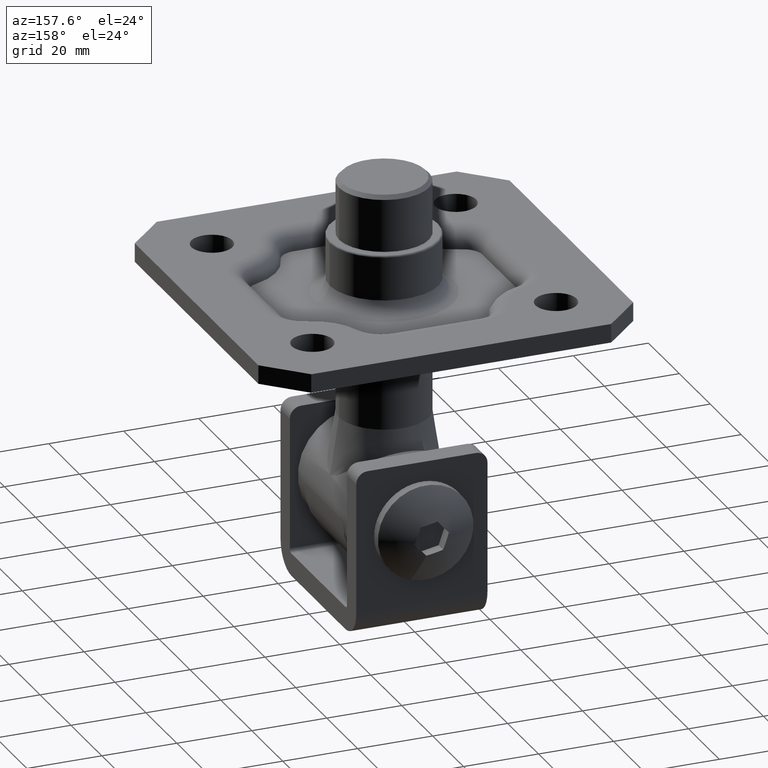
[diagram: clean part render]
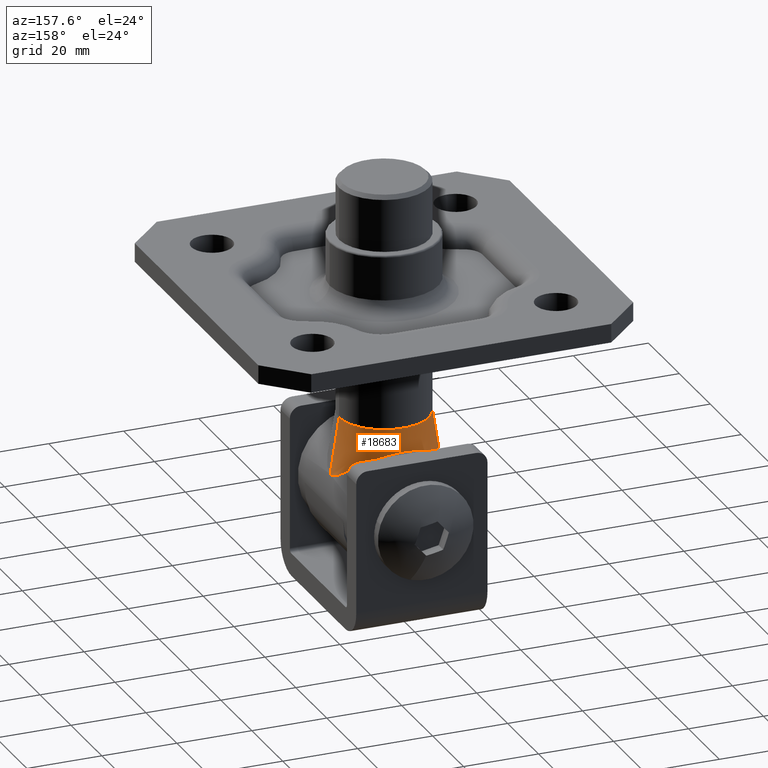
[diagram: same view with one face highlighted and labeled with its STEP entity id]
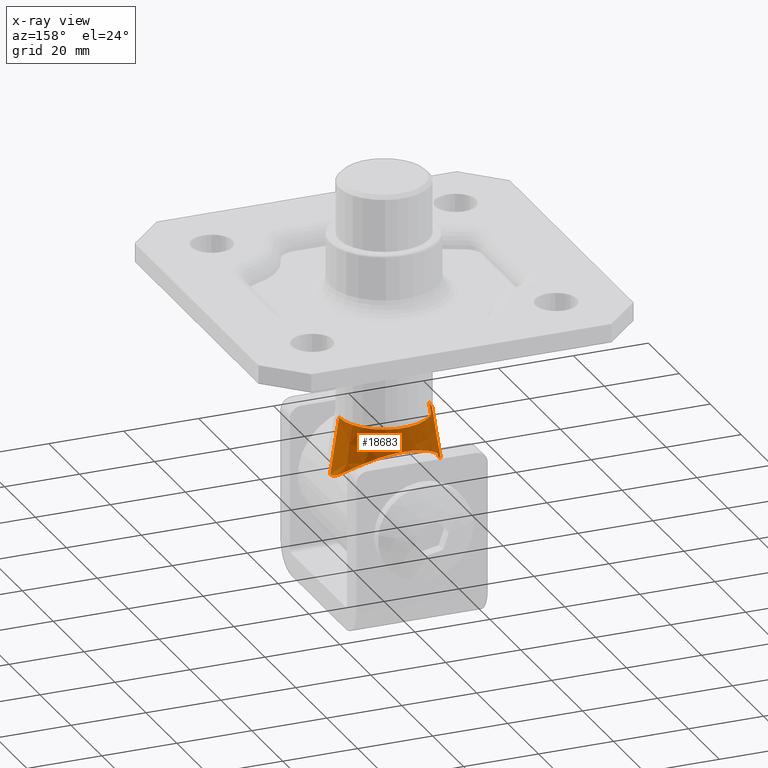
[diagram: x-ray of the same camera — body ghosted, the highlighted face saturated]
A machine part, auxiliary view. The second image highlights one B-rep face of the part: STEP entity #18683.
The next image is the same camera in x-ray: the body ghosted, the highlighted face saturated — about 0% of this face is hidden behind the body in this view.
In plain terms, the highlighted conical surface has half-angle 9 deg.
Its self-contained STEP definition (entity closure, byte-faithful):
#107 = CARTESIAN_POINT ( 'NONE',  ( 13.39713544956636900, -4.410161254349027600, 8.752310522460673400 ) ) ;
#133 = DIRECTION ( 'NONE',  ( -1.000000000000000000, 0.0000000000000000000, 0.0000000000000000000 ) ) ;
#181 = CARTESIAN_POINT ( 'NONE',  ( 14.29570863239523800, -1.226807393093556100, 7.186002517344746800 ) ) ;
#389 = CARTESIAN_POINT ( 'NONE',  ( -13.21602289178644600, -4.801149830408786700, 9.024675190932733000 ) ) ;
#421 = VERTEX_POINT ( 'NONE', #9619 ) ;
#479 = CARTESIAN_POINT ( 'NONE',  ( -14.36059214336729400, -0.4952040091087420200, 7.055150786336528600 ) ) ;
#535 = B_SPLINE_CURVE_WITH_KNOTS ( 'NONE', 3,
 ( #13796, #1922, #22241, #17406, #10326, #19103, #18828, #8644, #3470, #8504, #11998, #20663, #3392, #13967, #1697, #15434, #15512, #6734, #7037, #12160, #107, #6808, #1846, #17321, #6959, #19042, #20728, #181, #3602, #8793, #20816, #19398 ),
 .UNSPECIFIED., .F., .F.,
 ( 4, 2, 2, 2, 2, 2, 2, 2, 2, 2, 2, 2, 2, 2, 2, 4 ),
 ( 0.01277028724076360000, 0.01422243370768486300, 0.01567458017460612900, 0.01712672664152739200, 0.01857887310844865600, 0.02148316604229118900, 0.02438745897613371600, 0.02729175190997624700, 0.02874389837689751000, 0.03019604484381877700, 0.03164819131074004400, 0.03310033777766131100, 0.03382641101112194400, 0.03455248424458257800, 0.03527855747804321100, 0.03600463071150384500 ),
 .UNSPECIFIED. ) ;
#558 = CARTESIAN_POINT ( 'NONE',  ( -12.64338464806407300, -5.899818394293129500, 9.827355603280977900 ) ) ;
#629 = CARTESIAN_POINT ( 'NONE',  ( -10.61966705674688400, -8.486980950936315400, 11.97379655446275000 ) ) ;
#1469 = DIRECTION ( 'NONE',  ( 0.0000000000000000000, 0.0000000000000000000, 1.000000000000000000 ) ) ;
#1697 = CARTESIAN_POINT ( 'NONE',  ( 11.22387501882448300, -7.854222077706151800, 11.42651744918916600 ) ) ;
#1846 = CARTESIAN_POINT ( 'NONE',  ( 13.84910258656552500, -3.233812484852027300, 8.016455906739253100 ) ) ;
#1922 = CARTESIAN_POINT ( 'NONE',  ( 0.4868429948291325100, -12.95030664194722200, 16.00000000000000000 ) ) ;
#2419 = VERTEX_POINT ( 'NONE', #9061 ) ;
#2453 = CARTESIAN_POINT ( 'NONE',  ( -13.85008887611803600, -3.230640819407841800, 8.014728776402066000 ) ) ;
#2469 = VECTOR ( 'NONE', #6805, 1000.000000000000100 ) ;
#3392 = CARTESIAN_POINT ( 'NONE',  ( 9.441061330662234900, -9.594207743351765000, 12.94178290125595200 ) ) ;
#3470 = CARTESIAN_POINT ( 'NONE',  ( 5.192674089972531900, -12.02094834097389300, 15.14086051521905000 ) ) ;
#3510 = CARTESIAN_POINT ( 'NONE',  ( 14.37013227026879000, 1.764413466471998600E-015, 7.035573788610242300 ) ) ;
#3602 = CARTESIAN_POINT ( 'NONE',  ( 14.32312746724469000, -0.9877285487362730300, 7.130904558068571900 ) ) ;
#3987 = CARTESIAN_POINT ( 'NONE',  ( -14.29607687870768700, -1.224008810852781600, 7.185271387234304400 ) ) ;
#4214 = CARTESIAN_POINT ( 'NONE',  ( -6.022565946272988100, -11.68264532709573800, 14.83026596138718200 ) ) ;
#5607 = CARTESIAN_POINT ( 'NONE',  ( -14.22619847073909900, -1.693352005733906000, 7.322650893035185700 ) ) ;
#5754 = CARTESIAN_POINT ( 'NONE',  ( -8.727182448398648900, -10.14789768064235500, 13.43706696347478400 ) ) ;
#6734 = CARTESIAN_POINT ( 'NONE',  ( 12.64662427956729800, -5.856851855028117400, 9.807314779337019700 ) ) ;
#6805 = DIRECTION ( 'NONE',  ( 0.1564344650402308700, 1.915769668878472600E-017, -0.9876883405951376600 ) ) ;
#6808 = CARTESIAN_POINT ( 'NONE',  ( 13.70917712616147100, -3.635720133676526400, 8.254976696462247100 ) ) ;
#6902 = AXIS2_PLACEMENT_3D ( 'NONE', #13910, #15682, #133 ) ;
#6959 = CARTESIAN_POINT ( 'NONE',  ( 14.08573022560408500, -2.372981774495954700, 7.589671369872980300 ) ) ;
#7037 = CARTESIAN_POINT ( 'NONE',  ( 12.84964431291610500, -5.505768052566947900, 9.538940569928696400 ) ) ;
#7335 = FACE_OUTER_BOUND ( 'NONE', #11184, .T. ) ;
#7491 = CARTESIAN_POINT ( 'NONE',  ( -7.625748743198554000, -10.85119660894329700, 14.07222713797434100 ) ) ;
#7749 = EDGE_CURVE ( 'NONE', #19343, #17485, #535, .T. ) ;
#8504 = CARTESIAN_POINT ( 'NONE',  ( 6.478341259610828300, -11.49543335737147300, 14.65841669171637200 ) ) ;
#8644 = CARTESIAN_POINT ( 'NONE',  ( 4.746274500754809700, -12.17969392199039000, 15.28707898029497900 ) ) ;
#8793 = CARTESIAN_POINT ( 'NONE',  ( 14.36053738444275800, -0.4966424977800340500, 7.055263729248144600 ) ) ;
#9061 = CARTESIAN_POINT ( 'NONE',  ( -12.00000000000000200, 0.0000000000000000000, 22.00000000000000700 ) ) ;
#9113 = EDGE_CURVE ( 'NONE', #2419, #14969, #19098, .T. ) ;
#9168 = CARTESIAN_POINT ( 'NONE',  ( -11.45100730578209400, -7.556691287489495100, 11.18076508501116400 ) ) ;
#9332 = CARTESIAN_POINT ( 'NONE',  ( 1.959434424252865500E-015, -12.95030664194722200, 16.00000000000000000 ) ) ;
#9399 = VECTOR ( 'NONE', #21487, 1000.000000000000100 ) ;
#9405 = CARTESIAN_POINT ( 'NONE',  ( -6.441204340439239400, -11.48895017750733900, 14.65289951957588400 ) ) ;
#9619 = CARTESIAN_POINT ( 'NONE',  ( -14.37013227026879000, 2.180969929334028300E-018, 7.035573788610246700 ) ) ;
#9965 = DIRECTION ( 'NONE',  ( 1.000000000000000000, 0.0000000000000000000, 0.0000000000000000000 ) ) ;
#10326 = CARTESIAN_POINT ( 'NONE',  ( 2.435003990984006900, -12.75723712328657900, 15.82087071638434100 ) ) ;
#10595 = ORIENTED_EDGE ( 'NONE', *, *, #9113, .F. ) ;
#10707 = ORIENTED_EDGE ( 'NONE', *, *, #13213, .T. ) ;
#10869 = CARTESIAN_POINT ( 'NONE',  ( -14.03044140594113300, -2.592336830077414800, 7.691678865070144000 ) ) ;
#11173 = CARTESIAN_POINT ( 'NONE',  ( -2.415156128726731600, -12.76067267719356700, 15.82405441227312600 ) ) ;
#11184 = EDGE_LOOP ( 'NONE', ( #21411, #10595, #20767, #10707, #13307 ) ) ;
#11865 = LINE ( 'NONE', #13792, #2469 ) ;
#11998 = CARTESIAN_POINT ( 'NONE',  ( 7.275329803473940900, -11.07725360994827200, 14.27626569478717600 ) ) ;
#12160 = CARTESIAN_POINT ( 'NONE',  ( 13.22487948625288800, -4.782364329755414400, 9.011509792436353200 ) ) ;
#12462 = CARTESIAN_POINT ( 'NONE',  ( -11.18496473187583400, -7.872414951113645600, 11.44751921904971500 ) ) ;
#12617 = CARTESIAN_POINT ( 'NONE',  ( -13.39264271806654300, -4.420788288017975600, 8.759328699364830900 ) ) ;
#12891 = CARTESIAN_POINT ( 'NONE',  ( -4.740467467289788000, -12.20387242224812000, 15.30883158318468200 ) ) ;
#13213 = EDGE_CURVE ( 'NONE', #421, #19343, #19526, .T. ) ;
#13307 = ORIENTED_EDGE ( 'NONE', *, *, #7749, .T. ) ;
#13792 = CARTESIAN_POINT ( 'NONE',  ( 12.00000000000000200, 1.469576158976824100E-015, 22.00000000000000700 ) ) ;
#13796 = CARTESIAN_POINT ( 'NONE',  ( 1.959434424252865500E-015, -12.95030664194722200, 16.00000000000000000 ) ) ;
#13910 = CARTESIAN_POINT ( 'NONE',  ( 0.0000000000000000000, 0.0000000000000000000, 22.00000000000000700 ) ) ;
#13967 = CARTESIAN_POINT ( 'NONE',  ( 10.66935805866507000, -8.461396669915684400, 11.94940091923295200 ) ) ;
#14258 = CARTESIAN_POINT ( 'NONE',  ( -14.37013227026879000, -0.2461521886286288100, 7.035573788610253000 ) ) ;
#14392 = CARTESIAN_POINT ( 'NONE',  ( -10.32457508511419600, -8.781316349645907200, 12.22946493516243800 ) ) ;
#14758 = CARTESIAN_POINT ( 'NONE',  ( -0.9701484662845657500, -12.92649654103047800, 15.97788732500519300 ) ) ;
#14969 = VERTEX_POINT ( 'NONE', #20606 ) ;
#15434 = CARTESIAN_POINT ( 'NONE',  ( 11.97441642346419500, -6.877081842867846200, 10.61831056153364000 ) ) ;
#15512 = CARTESIAN_POINT ( 'NONE',  ( 12.20931777507580300, -6.542142880047163300, 10.34664623521851800 ) ) ;
#15682 = DIRECTION ( 'NONE',  ( 0.0000000000000000000, 0.0000000000000000000, -1.000000000000000000 ) ) ;
#15968 = CARTESIAN_POINT ( 'NONE',  ( -14.32340457749537100, -0.9848041524298384300, 7.130346459708116300 ) ) ;
#16136 = CARTESIAN_POINT ( 'NONE',  ( -9.398591361373505000, -9.629100803747128600, 12.97278434169120900 ) ) ;
#16202 = CARTESIAN_POINT ( 'NONE',  ( -13.70937776139252900, -3.635738398424943600, 8.254797370785858800 ) ) ;
#16270 = CARTESIAN_POINT ( 'NONE',  ( -3.841498156431065500, -12.47772885909057900, 15.56205643830414200 ) ) ;
#16742 = CARTESIAN_POINT ( 'NONE',  ( 0.0000000000000000000, 0.0000000000000000000, 22.00000000000000700 ) ) ;
#16942 = EDGE_CURVE ( 'NONE', #14969, #17485, #11865, .T. ) ;
#17210 = CARTESIAN_POINT ( 'NONE',  ( 1.959434424252865500E-015, -12.95030664194722200, 16.00000000000000000 ) ) ;
#17321 = CARTESIAN_POINT ( 'NONE',  ( 14.03002568788022900, -2.593966446950644000, 7.692443118860119000 ) ) ;
#17406 = CARTESIAN_POINT ( 'NONE',  ( 1.955554426719572400, -12.82921405227454400, 15.88762784698989700 ) ) ;
#17485 = VERTEX_POINT ( 'NONE', #3510 ) ;
#17757 = LINE ( 'NONE', #19643, #9399 ) ;
#17765 = CARTESIAN_POINT ( 'NONE',  ( -12.20296596751206100, -6.582942053735061800, 10.37438800165387900 ) ) ;
#18075 = CARTESIAN_POINT ( 'NONE',  ( -1.933774554781638100, -12.83185577949143400, 15.89007826879638700 ) ) ;
#18683 = ADVANCED_FACE ( 'NONE', ( #7335 ), #18690, .T. ) ;
#18690 = CONICAL_SURFACE ( 'NONE', #6902, 12.00000000000000200, 0.1570796326794896800 ) ;
#18828 = CARTESIAN_POINT ( 'NONE',  ( 3.838675536590361300, -12.45360702262213900, 15.53983511852923300 ) ) ;
#19042 = CARTESIAN_POINT ( 'NONE',  ( 14.18360789242390000, -1.923485213216726400, 7.405145146797384100 ) ) ;
#19098 = CIRCLE ( 'NONE', #21301, 12.00000000000000200 ) ;
#19103 = CARTESIAN_POINT ( 'NONE',  ( 3.376566916957032000, -12.56943927022945800, 15.64698023632568900 ) ) ;
#19343 = VERTEX_POINT ( 'NONE', #17210 ) ;
#19398 = CARTESIAN_POINT ( 'NONE',  ( 14.37013227026879000, 1.764413466471998600E-015, 7.035573788610242300 ) ) ;
#19526 = B_SPLINE_CURVE_WITH_KNOTS ( 'NONE', 3,
 ( #21024, #14258, #479, #15968, #3987, #5607, #19549, #21101, #10869, #2453, #16202, #12617, #389, #558, #17765, #9168, #12462, #629, #14392, #16136, #5754, #7491, #19624, #9405, #4214, #12891, #16270, #11173, #18075, #14758, #21393, #9332 ),
 .UNSPECIFIED., .F., .F.,
 ( 4, 2, 2, 2, 2, 2, 2, 2, 2, 2, 2, 2, 2, 2, 2, 4 ),
 ( 0.08215917891312905800, 0.08288425016755401900, 0.08360932142197899400, 0.08433439267640395500, 0.08505946393082891600, 0.08650960643967885200, 0.08795974894852877400, 0.09086003396622863200, 0.09231017647507855400, 0.09376031898392849000, 0.09666060400162833400, 0.09811074651047825600, 0.09956088901932817800, 0.1024611740370280400, 0.1039113165458779600, 0.1053614590547278800 ),
 .UNSPECIFIED. ) ;
#19549 = CARTESIAN_POINT ( 'NONE',  ( -14.18340383209626200, -1.924547991957384200, 7.405537811633071700 ) ) ;
#19624 = CARTESIAN_POINT ( 'NONE',  ( -7.242780174365739400, -11.07303046749623300, 14.27370705289607100 ) ) ;
#19643 = CARTESIAN_POINT ( 'NONE',  ( -12.00000000000000200, 0.0000000000000000000, 22.00000000000000700 ) ) ;
#20606 = CARTESIAN_POINT ( 'NONE',  ( 12.00000000000000200, 1.615822452473417000E-015, 22.00000000000000700 ) ) ;
#20663 = CARTESIAN_POINT ( 'NONE',  ( 8.766201956172910300, -10.12059097099150100, 13.41252732340417000 ) ) ;
#20728 = CARTESIAN_POINT ( 'NONE',  ( 14.22595129233413900, -1.694684082421996200, 7.323129611700276900 ) ) ;
#20767 = ORIENTED_EDGE ( 'NONE', *, *, #21645, .T. ) ;
#20816 = CARTESIAN_POINT ( 'NONE',  ( 14.37013227026879400, -0.2468711123418361500, 7.035573788610253000 ) ) ;
#21024 = CARTESIAN_POINT ( 'NONE',  ( -14.37013227026879000, 2.180969929334028300E-018, 7.035573788610246700 ) ) ;
#21101 = CARTESIAN_POINT ( 'NONE',  ( -14.08539825844383100, -2.374379976438650200, 7.590289220107329100 ) ) ;
#21301 = AXIS2_PLACEMENT_3D ( 'NONE', #16742, #1469, #9965 ) ;
#21393 = CARTESIAN_POINT ( 'NONE',  ( -0.4861711528550720100, -12.95030664194721700, 15.99999999999999600 ) ) ;
#21411 = ORIENTED_EDGE ( 'NONE', *, *, #16942, .F. ) ;
#21487 = DIRECTION ( 'NONE',  ( -0.1564344650402308700, 0.0000000000000000000, -0.9876883405951376600 ) ) ;
#21645 = EDGE_CURVE ( 'NONE', #2419, #421, #17757, .T. ) ;
#22241 = CARTESIAN_POINT ( 'NONE',  ( 0.9780329856032725600, -12.92620980951044600, 15.97762069894586800 ) ) ;